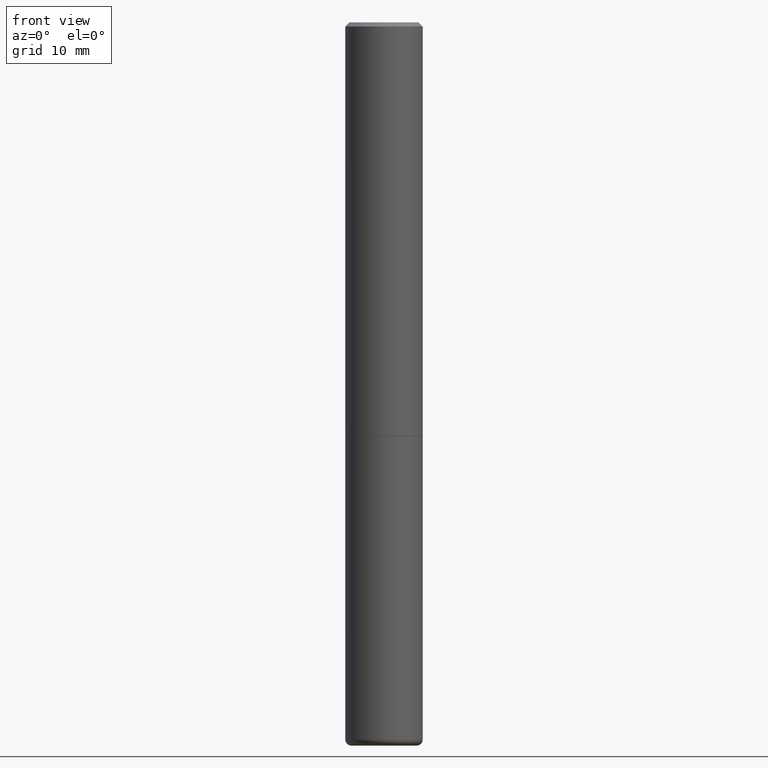
[diagram: clean part render]
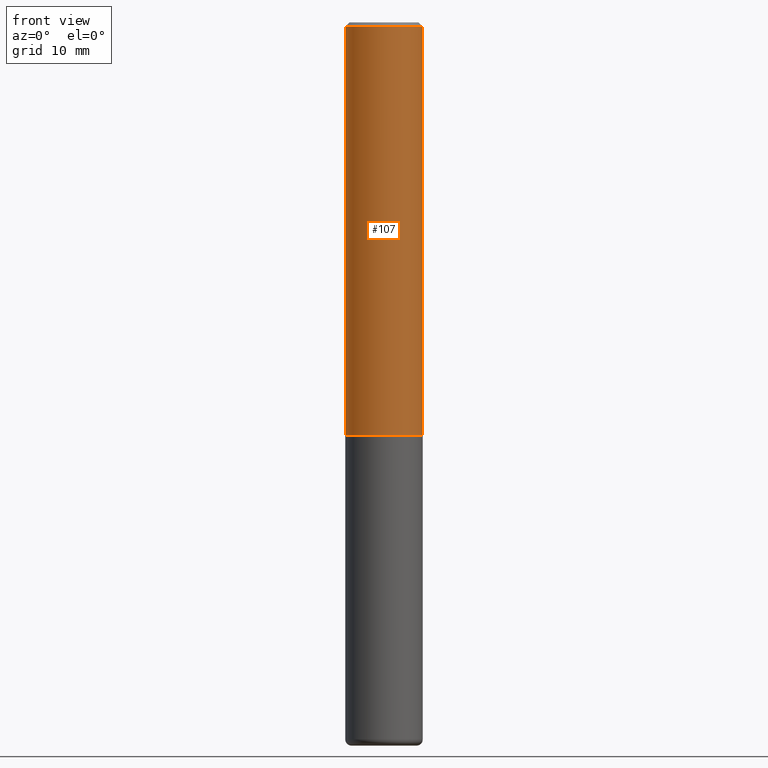
[diagram: same view with one face highlighted and labeled with its STEP entity id]
A machine part, front view. The second image highlights one B-rep face of the part: STEP entity #107.
In plain terms, the highlighted cylindrical surface (partial cylindrical patch) has radius 4.7625 mm, axis along (-0, 0, 1).
Its self-contained STEP definition (entity closure, byte-faithful):
#4 = CARTESIAN_POINT ( 'NONE',  ( 0.1875000000000001388, -1.309305502066175994E-15, 9.142831454617388019E-30 ) ) ;
#5 = ORIENTED_EDGE ( 'NONE', *, *, #133, .F. ) ;
#15 = CARTESIAN_POINT ( 'NONE',  ( 0.1875000000000002498, -8.288776698413623955E-15, -1.998999999999999666 ) ) ;
#25 = AXIS2_PLACEMENT_3D ( 'NONE', #35, #415, #321 ) ;
#35 = CARTESIAN_POINT ( 'NONE',  ( 4.890937612370282792E-31, -6.982962677686303935E-17, -0.02000000000000003858 ) ) ;
#45 = CARTESIAN_POINT ( 'NONE',  ( 0.1875000000000000555, -1.356173001359025663E-15, -0.02000000000000003858 ) ) ;
#67 = DIRECTION ( 'NONE',  ( -2.445468806185136597E-29, 3.491481338843145583E-15, 1.000000000000000000 ) ) ;
#68 = CYLINDRICAL_SURFACE ( 'NONE', #268, 0.1875000000000001388 ) ;
#76 = AXIS2_PLACEMENT_3D ( 'NONE', #387, #67, #330 ) ;
#77 = EDGE_CURVE ( 'NONE', #119, #365, #89, .T. ) ;
#89 = LINE ( 'NONE', #4, #318 ) ;
#98 = VERTEX_POINT ( 'NONE', #230 ) ;
#102 = CARTESIAN_POINT ( 'NONE',  ( 0.000000000000000000, 0.000000000000000000, 0.000000000000000000 ) ) ;
#107 = ADVANCED_FACE ( 'NONE', ( #264 ), #68, .T. ) ;
#110 = LINE ( 'NONE', #242, #164 ) ;
#119 = VERTEX_POINT ( 'NONE', #15 ) ;
#133 = EDGE_CURVE ( 'NONE', #98, #194, #110, .T. ) ;
#135 = DIRECTION ( 'NONE',  ( -2.445468806185136597E-29, 3.491481338843145583E-15, 1.000000000000000000 ) ) ;
#139 = DIRECTION ( 'NONE',  ( 1.000000000000000000, -6.982962677686266711E-15, 4.876176775795936914E-29 ) ) ;
#164 = VECTOR ( 'NONE', #209, 39.37007874015748143 ) ;
#165 = CIRCLE ( 'NONE', #25, 0.1875000000000000555 ) ;
#194 = VERTEX_POINT ( 'NONE', #356 ) ;
#199 = CIRCLE ( 'NONE', #76, 0.1875000000000002498 ) ;
#209 = DIRECTION ( 'NONE',  ( -2.445468806185136877E-29, 3.491481338843145188E-15, 1.000000000000000000 ) ) ;
#216 = EDGE_LOOP ( 'NONE', ( #5, #329, #382, #361 ) ) ;
#221 = DIRECTION ( 'NONE',  ( -2.445468806185136877E-29, 3.491481338843145188E-15, 1.000000000000000000 ) ) ;
#230 = CARTESIAN_POINT ( 'NONE',  ( -0.1875000000000002220, -2.192382782011963935E-15, -1.998999999999999666 ) ) ;
#242 = CARTESIAN_POINT ( 'NONE',  ( -0.1875000000000001388, 1.332267629550188835E-15, -9.223003294227954997E-30 ) ) ;
#264 = FACE_OUTER_BOUND ( 'NONE', #216, .T. ) ;
#265 = EDGE_CURVE ( 'NONE', #194, #365, #165, .T. ) ;
#268 = AXIS2_PLACEMENT_3D ( 'NONE', #102, #135, #139 ) ;
#318 = VECTOR ( 'NONE', #221, 39.37007874015748143 ) ;
#321 = DIRECTION ( 'NONE',  ( 1.000000000000000000, -6.982962677686265922E-15, 0.000000000000000000 ) ) ;
#329 = ORIENTED_EDGE ( 'NONE', *, *, #338, .T. ) ;
#330 = DIRECTION ( 'NONE',  ( 1.000000000000000000, -6.982962677686269077E-15, 0.000000000000000000 ) ) ;
#338 = EDGE_CURVE ( 'NONE', #98, #119, #199, .T. ) ;
#356 = CARTESIAN_POINT ( 'NONE',  ( -0.1875000000000000555, 1.239475875289312104E-15, -0.02000000000000003858 ) ) ;
#361 = ORIENTED_EDGE ( 'NONE', *, *, #265, .F. ) ;
#365 = VERTEX_POINT ( 'NONE', #45 ) ;
#382 = ORIENTED_EDGE ( 'NONE', *, *, #77, .T. ) ;
#387 = CARTESIAN_POINT ( 'NONE',  ( 4.888492143564087030E-29, -6.979471196347446580E-15, -1.998999999999999666 ) ) ;
#415 = DIRECTION ( 'NONE',  ( -2.445468806185136597E-29, 3.491481338843145583E-15, 1.000000000000000000 ) ) ;